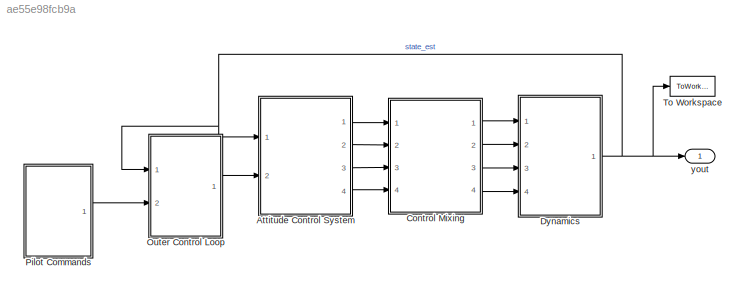
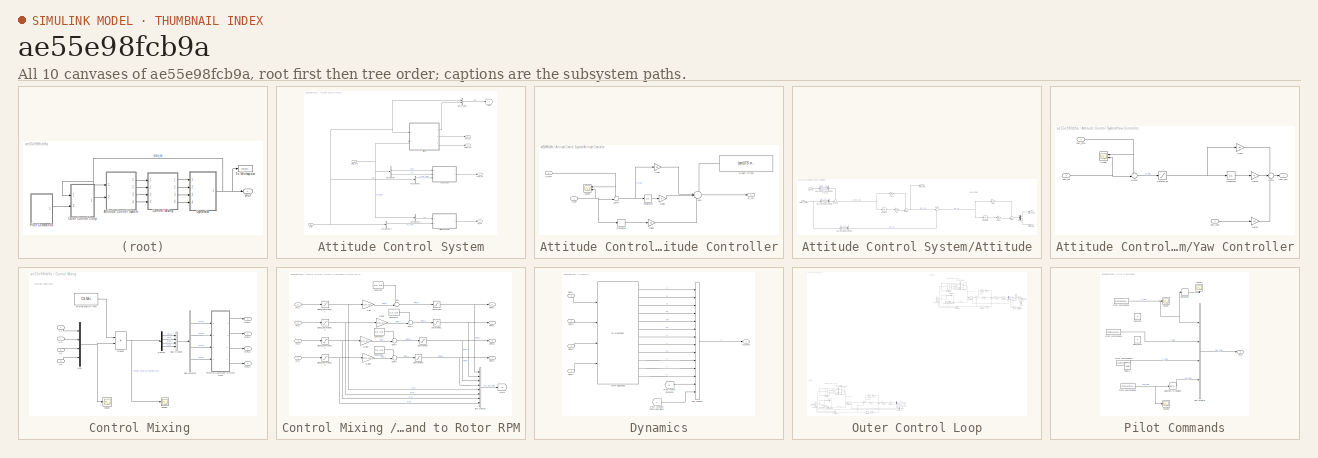
[diagram: thumbnail index - all 10 canvases of the model, root first then tree order]
MODEL slx_ae55e98fcb9a
KIND model
CONFIG AbsTol = auto
CONFIG EnableMultiTasking = off
CONFIG FixedStep = auto
CONFIG MaxStep = auto
CONFIG MinStep = auto
CONFIG RelTol = 1e-3
CONFIG SampleTimeConstraint = Unconstrained
CONFIG SolverName = VariableStepAuto
CONFIG StartTime = 0.0
CONFIG StopTime = 40
BLOCK [SubSystem] Attitude Control System
  Ports = [2, 4]
  RequestExecContextInheritance = off
BLOCK [Outport] Attitude Control System/Alt_cor
  Port = 4
BLOCK [SubSystem] Attitude Control System/Altitude Controller
  Ports = [2, 1]
  RequestExecContextInheritance = off
BLOCK [Outport] Attitude Control System/Altitude Controller/Alt_corr
BLOCK [Derivative] Attitude Control System/Altitude Controller/Derivative
BLOCK [Gain] Attitude Control System/Altitude Controller/Gain
  Gain = Kp
BLOCK [Gain] Attitude Control System/Altitude Controller/Gain1
  Gain = Ki
BLOCK [Gain] Attitude Control System/Altitude Controller/Gain2
  Gain = Kd
BLOCK [Constant] Attitude Control System/Altitude Controller/Gravity Offset
  NameLocation = top
  Value = (sqrt((CS.m*9.81)/(4*CS.b))-CS.Cb)/CS.Cr
  VectorParams1D = off
BLOCK [Integrator] Attitude Control System/Altitude Controller/Integrator
  LimitOutput = on
  LowerSaturationLimit = -1
  Ports = [1, 1]
  UpperSaturationLimit = 1
BLOCK [Scope] Attitude Control System/Altitude Controller/Scope
  Floating = off
  NameLocation = top
  NumInputPorts = 2
  Ports = [2]
  ScopeSpecificationString = Simulink.scopes.TimeScopeBlockCfg('CurrentConfiguration', extmgr.ConfigurationSet(extmgr.Configuration('Core','General UI',true),extmgr.Configuration('Core','Source UI',true),extmgr.Configuration('Sources','WiredSimulink',true,'DataLoggingVariableName','ScopeData1'),extmgr.Configuration('Visuals','Time Domain',true,'SerializedDisplays',{struct('MinYLimReal','-0.0000000000000000000000058','MaxYLimR...<+1565ch>
BLOCK [Sum] Attitude Control System/Altitude Controller/Sum
  Inputs = +++-
  Ports = [4, 1]
BLOCK [Sum] Attitude Control System/Altitude Controller/Sum6
  Inputs = +-|
  Ports = [2, 1]
BLOCK [Inport] Attitude Control System/Altitude Controller/h_est
BLOCK [Inport] Attitude Control System/Altitude Controller/z_cmd
  Port = 2
BLOCK [SubSystem] Attitude Control System/Attitude
  Ports = [2, 3]
  RequestExecContextInheritance = off
BLOCK [Inport] Attitude Control System/Attitude/Att_cmd
BLOCK [BusCreator] Attitude Control System/Attitude/Bus Creator
  DisplayOption = bar
  InheritFromInputs = on
  Inputs = 2
  Ports = [2, 1]
BLOCK [BusCreator] Attitude Control System/Attitude/Bus Creator1
  DisplayOption = bar
  InheritFromInputs = on
  Inputs = 2
  Ports = [2, 1]
BLOCK [BusCreator] Attitude Control System/Attitude/Bus Creator2
  DisplayOption = bar
  InheritFromInputs = on
  Inputs = 2
  Ports = [2, 1]
BLOCK [BusSelector] Attitude Control System/Attitude/Bus Selector
  OutputSignals = pitch_cmd,roll_cmd
  Ports = [1, 2]
BLOCK [BusSelector] Attitude Control System/Attitude/Bus Selector3
  OutputSignals = The,Phi
  Ports = [1, 2]
BLOCK [BusSelector] Attitude Control System/Attitude/Bus Selector4
  OutputSignals = Q,P
  Ports = [1, 2]
BLOCK [Demux] Attitude Control System/Attitude/Demux
  Outputs = 2
  Ports = [1, 2]
BLOCK [Gain] Attitude Control System/Attitude/Gainki
  Gain = Ki2
BLOCK [Integrator] Attitude Control System/Attitude/Integrator
  LimitOutput = on
  LowerSaturationLimit = -1
  Ports = [1, 1]
  UpperSaturationLimit = 1
BLOCK [Integrator] Attitude Control System/Attitude/Integrator1
  LimitOutput = on
  LowerSaturationLimit = -1
  Ports = [1, 1]
  UpperSaturationLimit = 1
BLOCK [Gain] Attitude Control System/Attitude/Kd1
  Gain = Kd
BLOCK [Gain] Attitude Control System/Attitude/Ki1
  Gain = Ki
BLOCK [Gain] Attitude Control System/Attitude/Kp1
  Gain = Kp
BLOCK [Sum] Attitude Control System/Attitude/Sum
  Inputs = ++|
  Ports = [2, 1]
BLOCK [Sum] Attitude Control System/Attitude/Sum1
  Inputs = ++|
  Ports = [2, 1]
BLOCK [Sum] Attitude Control System/Attitude/Sum19
  Inputs = +-|
  Ports = [2, 1]
BLOCK [Sum] Attitude Control System/Attitude/Sum2
  Inputs = |+-
  Ports = [2, 1]
BLOCK [Outport] Attitude Control System/Attitude/phi_corr
  Port = 2
  VectorParamsAs1DForOutWhenUnconnected = off
BLOCK [Outport] Attitude Control System/Attitude/pitch_corr
  Port = 3
  VectorParamsAs1DForOutWhenUnconnected = off
BLOCK [Outport] Attitude Control System/Attitude/rate_cmd
BLOCK [Inport] Attitude Control System/Attitude/states_estim
  Port = 2
BLOCK [BusCreator] Attitude Control System/Bus Creator1
  DisplayOption = bar
  InheritFromInputs = on
  Inputs = 2
  Ports = [2, 1]
BLOCK [BusSelector] Attitude Control System/Bus Selector
  OutputSignals = Psi,R
  Ports = [1, 2]
BLOCK [BusSelector] Attitude Control System/Bus Selector1
  OutputSignals = pos_cmd.yaw_cmd
  Ports = [1, 1]
BLOCK [BusSelector] Attitude Control System/Bus Selector2
  OutputSignals = pos_cmd.z_cmd
  Ports = [1, 1]
BLOCK [BusSelector] Attitude Control System/Bus Selector3
  OutputSignals = Z
  Ports = [1, 1]
BLOCK [Goto] Attitude Control System/Goto1
  TagVisibility = global
BLOCK [SubSystem] Attitude Control System/Yaw Controller
  Ports = [3, 1]
  RequestExecContextInheritance = off
BLOCK [Gain] Attitude Control System/Yaw Controller/Gain
  Gain = Kp
BLOCK [Gain] Attitude Control System/Yaw Controller/Gain1
  Gain = Ki
BLOCK [Gain] Attitude Control System/Yaw Controller/Gain2
  Gain = Kd
BLOCK [Integrator] Attitude Control System/Yaw Controller/Integrator
  LimitOutput = on
  LowerSaturationLimit = -1
  Ports = [1, 1]
  UpperSaturationLimit = 1
BLOCK [Saturate] Attitude Control System/Yaw Controller/Saturation
  LowerLimit = -pi
  UpperLimit = pi
BLOCK [Scope] Attitude Control System/Yaw Controller/Scope
  Floating = off
  NameLocation = top
  NumInputPorts = 2
  Ports = [2]
  ScopeSpecificationString = Simulink.scopes.TimeScopeBlockCfg('CurrentConfiguration', extmgr.ConfigurationSet(extmgr.Configuration('Core','General UI',true),extmgr.Configuration('Core','Source UI',true),extmgr.Configuration('Sources','WiredSimulink',true,'DataLoggingVariableName','ScopeData2'),extmgr.Configuration('Visuals','Time Domain',true,'SerializedDisplays',{struct('MinYLimReal','-0.00308','MaxYLimReal','0.00465','YLab...<+1405ch>
BLOCK [Sum] Attitude Control System/Yaw Controller/Sum1
  Inputs = ++-
  Ports = [3, 1]
BLOCK [Sum] Attitude Control System/Yaw Controller/Sum6
  Inputs = +-|
  Ports = [2, 1]
BLOCK [Inport] Attitude Control System/Yaw Controller/yaw_cmd
  Port = 3
BLOCK [Outport] Attitude Control System/Yaw Controller/yaw_corr
BLOCK [Inport] Attitude Control System/Yaw Controller/yaw_est
BLOCK [Inport] Attitude Control System/Yaw Controller/yaw_rate
  Port = 2
BLOCK [Inport] Attitude Control System/cmd
  Port = 2
BLOCK [Outport] Attitude Control System/phi_cor
BLOCK [Inport] Attitude Control System/state_est
BLOCK [Outport] Attitude Control System/theta_cor
  Port = 2
BLOCK [Outport] Attitude Control System/yaw_cor
  Port = 3
BLOCK [SubSystem] Control Mixing 
  Ports = [4, 4]
  RequestExecContextInheritance = off
BLOCK [BusCreator] Control Mixing /Bus Creator
  DisplayOption = bar
  InheritFromInputs = on
  Inputs = 4
  Ports = [4, 1]
BLOCK [BusSelector] Control Mixing /Bus Selector
  OutputSignals = mc1,mc2,mc3,mc4
  Ports = [1, 4]
BLOCK [Demux] Control Mixing /Demux
  Ports = [1, 4]
BLOCK [Constant] Control Mixing /Mixing Matrix (4x4)
  NameLocation = top
  OutDataTypeStr = single
  Value = CS.Mix
BLOCK [Mux] Control Mixing /Mux
  DisplayOption = bar
  Ports = [4, 1]
BLOCK [Product] Control Mixing /Product
  Multiplication = Matrix(*)
  Ports = [2, 1]
  RndMeth = Zero
BLOCK [Outport] Control Mixing /RPM1
BLOCK [Outport] Control Mixing /RPM2
  Port = 2
BLOCK [Outport] Control Mixing /RPM3
  Port = 3
BLOCK [Outport] Control Mixing /RPM4
  Port = 4
BLOCK [Scope] Control Mixing /Scope
  Floating = off
  NumInputPorts = 1
  Ports = [1]
  ScopeSpecificationString = Simulink.scopes.TimeScopeBlockCfg('CurrentConfiguration', extmgr.ConfigurationSet(extmgr.Configuration('Core','General UI',true),extmgr.Configuration('Core','Source UI',true),extmgr.Configuration('Sources','WiredSimulink',true,'DataLoggingVariableName','ScopeData1'),extmgr.Configuration('Visuals','Time Domain',true,'SerializedDisplays',{struct('MinYLimReal','-16.84881','MaxYLimReal','118.1171','YL...<+1409ch>
BLOCK [Scope] Control Mixing /Scope1
  Floating = off
  NumInputPorts = 1
  Ports = [1]
  ScopeSpecificationString = Simulink.scopes.TimeScopeBlockCfg('CurrentConfiguration', extmgr.ConfigurationSet(extmgr.Configuration('Core','General UI',true),extmgr.Configuration('Core','Source UI',true),extmgr.Configuration('Sources','WiredSimulink',true,'DataLoggingVariableName','ScopeData2'),extmgr.Configuration('Visuals','Time Domain',true,'SerializedDisplays',{struct('MinYLimReal','6.25322','MaxYLimReal','13.74213','YLab...<+1511ch>
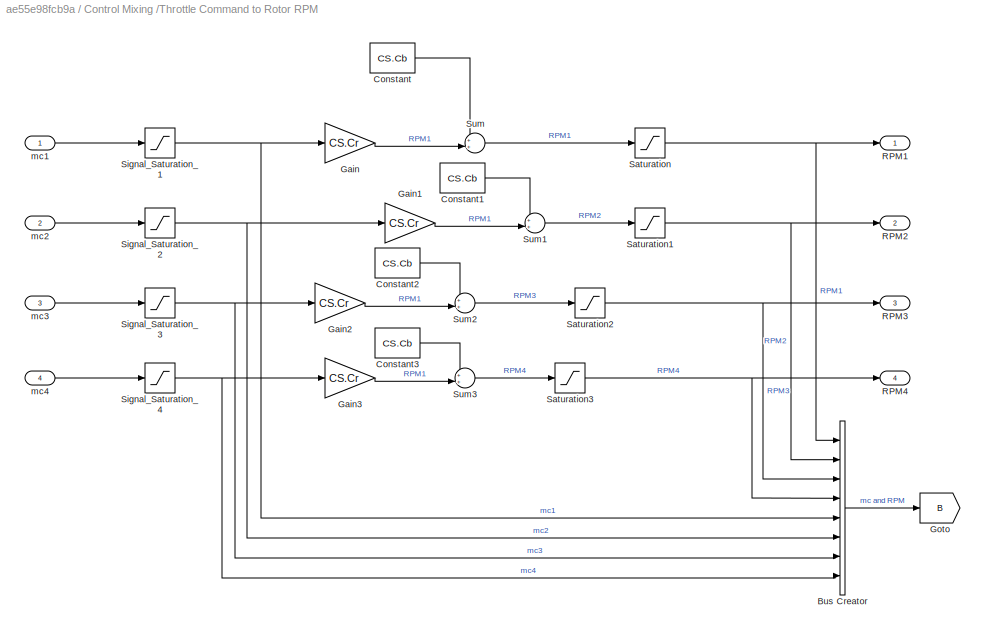
BLOCK [SubSystem] Control Mixing /Throttle Command to Rotor RPM
  Ports = [4, 4]
  RequestExecContextInheritance = off
BLOCK [BusCreator] Control Mixing /Throttle Command to Rotor RPM/Bus Creator
  DisplayOption = bar
  InheritFromInputs = on
  Inputs = 8
  Ports = [8, 1]
BLOCK [Constant] Control Mixing /Throttle Command to Rotor RPM/Constant
  Value = CS.Cb
BLOCK [Constant] Control Mixing /Throttle Command to Rotor RPM/Constant1
  Value = CS.Cb
BLOCK [Constant] Control Mixing /Throttle Command to Rotor RPM/Constant2
  Value = CS.Cb
BLOCK [Constant] Control Mixing /Throttle Command to Rotor RPM/Constant3
  Value = CS.Cb
BLOCK [Gain] Control Mixing /Throttle Command to Rotor RPM/Gain
  Gain = CS.Cr
BLOCK [Gain] Control Mixing /Throttle Command to Rotor RPM/Gain1
  Gain = CS.Cr
BLOCK [Gain] Control Mixing /Throttle Command to Rotor RPM/Gain2
  Gain = CS.Cr
BLOCK [Gain] Control Mixing /Throttle Command to Rotor RPM/Gain3
  Gain = CS.Cr
BLOCK [Goto] Control Mixing /Throttle Command to Rotor RPM/Goto
  GotoTag = B
  TagVisibility = global
BLOCK [Outport] Control Mixing /Throttle Command to Rotor RPM/RPM1
BLOCK [Outport] Control Mixing /Throttle Command to Rotor RPM/RPM2
  Port = 2
BLOCK [Outport] Control Mixing /Throttle Command to Rotor RPM/RPM3
  Port = 3
BLOCK [Outport] Control Mixing /Throttle Command to Rotor RPM/RPM4
  Port = 4
BLOCK [Saturate] Control Mixing /Throttle Command to Rotor RPM/Saturation
  LowerLimit = CS.Cb
  UpperLimit = 10e3
BLOCK [Saturate] Control Mixing /Throttle Command to Rotor RPM/Saturation1
  LowerLimit = CS.Cb
  UpperLimit = 10e3
BLOCK [Saturate] Control Mixing /Throttle Command to Rotor RPM/Saturation2
  LowerLimit = CS.Cb
  UpperLimit = 10e3
BLOCK [Saturate] Control Mixing /Throttle Command to Rotor RPM/Saturation3
  LowerLimit = CS.Cb
  UpperLimit = 10e3
BLOCK [Saturate] Control Mixing /Throttle Command to Rotor RPM/Signal_Saturation_1
  LowerLimit = 0
  UpperLimit = 100
BLOCK [Saturate] Control Mixing /Throttle Command to Rotor RPM/Signal_Saturation_2
  LowerLimit = 0
  UpperLimit = 100
BLOCK [Saturate] Control Mixing /Throttle Command to Rotor RPM/Signal_Saturation_3
  LowerLimit = 0
  UpperLimit = 100
BLOCK [Saturate] Control Mixing /Throttle Command to Rotor RPM/Signal_Saturation_4
  LowerLimit = 0
  UpperLimit = 100
BLOCK [Sum] Control Mixing /Throttle Command to Rotor RPM/Sum
  Inputs = ++|
  Ports = [2, 1]
BLOCK [Sum] Control Mixing /Throttle Command to Rotor RPM/Sum1
  Inputs = ++|
  Ports = [2, 1]
BLOCK [Sum] Control Mixing /Throttle Command to Rotor RPM/Sum2
  Inputs = ++|
  Ports = [2, 1]
BLOCK [Sum] Control Mixing /Throttle Command to Rotor RPM/Sum3
  Inputs = ++|
  Ports = [2, 1]
BLOCK [Inport] Control Mixing /Throttle Command to Rotor RPM/mc1
BLOCK [Inport] Control Mixing /Throttle Command to Rotor RPM/mc2
  Port = 2
BLOCK [Inport] Control Mixing /Throttle Command to Rotor RPM/mc3
  Port = 3
BLOCK [Inport] Control Mixing /Throttle Command to Rotor RPM/mc4
  Port = 4
BLOCK [Inport] Control Mixing /U1
  Port = 4
BLOCK [Inport] Control Mixing /U2
BLOCK [Inport] Control Mixing /U3
  Port = 2
BLOCK [Inport] Control Mixing /U4
  Port = 3
BLOCK [SubSystem] Dynamics
  Ports = [4, 1]
  RequestExecContextInheritance = off
BLOCK [BusCreator] Dynamics/Bus Creator
  DisplayOption = bar
  InheritFromInputs = on
  Inputs = 14
  Ports = [14, 1]
BLOCK [From] Dynamics/From Attitude Command Block
  TagVisibility = global
BLOCK [From] Dynamics/From Motor Dynamics
  GotoTag = B
  TagVisibility = global
BLOCK [Outport] Dynamics/Outputs
BLOCK [Inport] Dynamics/RPM1
BLOCK [Inport] Dynamics/RPM2
  Port = 2
BLOCK [Inport] Dynamics/RPM3
  Port = 3
BLOCK [Inport] Dynamics/RPM4
  Port = 4
BLOCK [M-S-Function] Dynamics/State Equations
  FunctionName = Quad_dynamics
  Parameters = CS
  Ports = [4, 12]
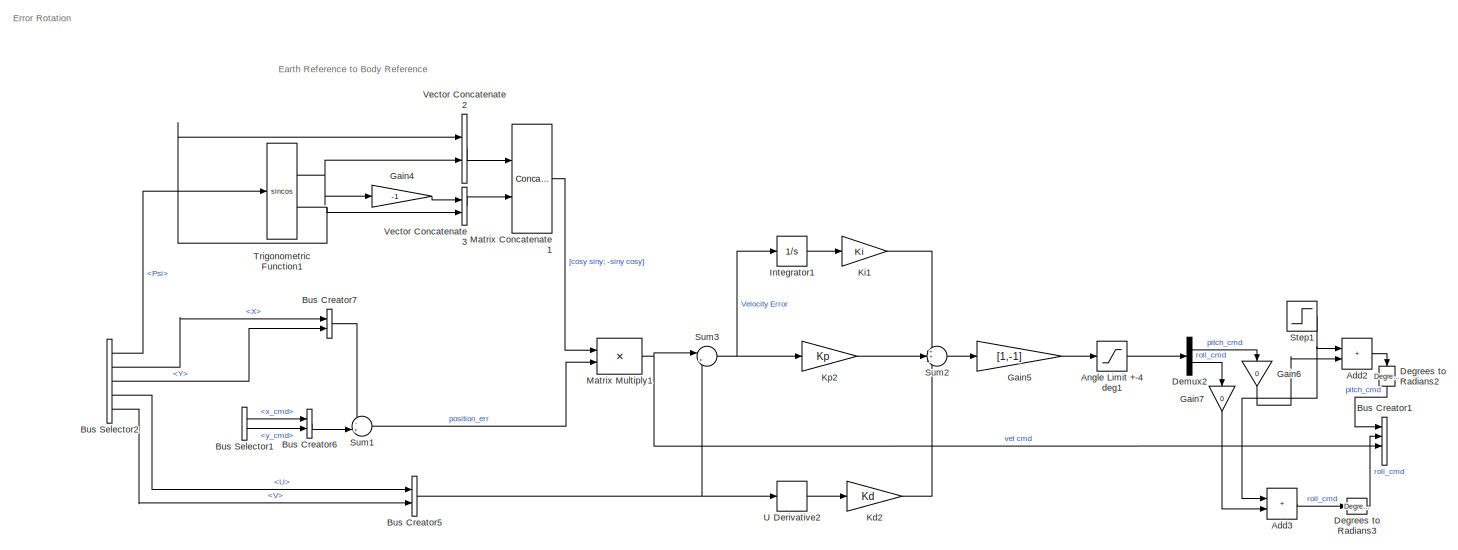
[diagram: Outer Control Loop - part 1/2, top right region]
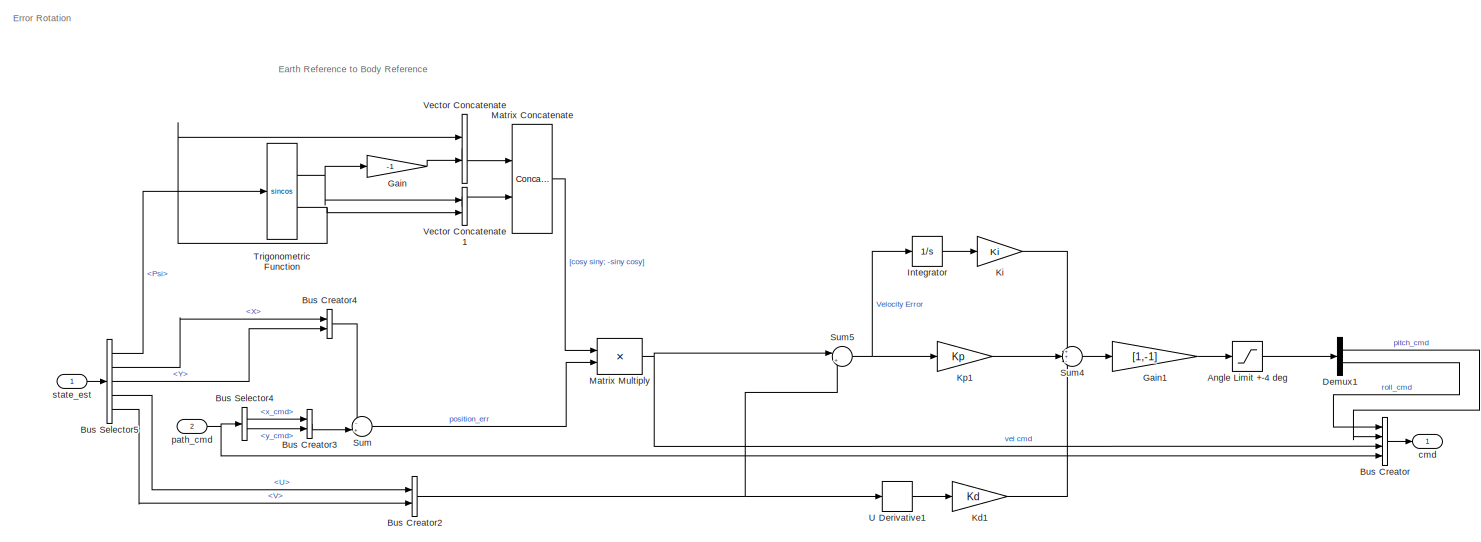
[diagram: Outer Control Loop - part 2/2, bottom left region]
BLOCK [SubSystem] Outer Control Loop
  Ports = [2, 1]
  RequestExecContextInheritance = off
BLOCK [Sum] Outer Control Loop/Add2
  Commented = on
  IconShape = rectangular
  Ports = [2, 1]
BLOCK [Sum] Outer Control Loop/Add3
  Commented = on
  IconShape = rectangular
  Ports = [2, 1]
BLOCK [Saturate] Outer Control Loop/Angle Limit +-4 deg
  LowerLimit = -4*pi/180
  UpperLimit = 4*pi/180
BLOCK [Saturate] Outer Control Loop/Angle Limit +-4 deg1
  Commented = on
  LowerLimit = -4*pi/180
  UpperLimit = 4*pi/180
BLOCK [BusCreator] Outer Control Loop/Bus Creator
  DisplayOption = bar
  InheritFromInputs = on
  Inputs = 4
  Ports = [4, 1]
BLOCK [BusCreator] Outer Control Loop/Bus Creator1
  Commented = on
  DisplayOption = bar
  InheritFromInputs = on
  Inputs = 4
  Ports = [4, 1]
BLOCK [BusCreator] Outer Control Loop/Bus Creator2
  DisplayOption = bar
  InheritFromInputs = on
  Inputs = 2
  Ports = [2, 1]
BLOCK [BusCreator] Outer Control Loop/Bus Creator3
  DisplayOption = bar
  InheritFromInputs = on
  Inputs = 2
  Ports = [2, 1]
BLOCK [BusCreator] Outer Control Loop/Bus Creator4
  DisplayOption = bar
  InheritFromInputs = on
  Inputs = 2
  Ports = [2, 1]
BLOCK [BusCreator] Outer Control Loop/Bus Creator5
  Commented = on
  DisplayOption = bar
  InheritFromInputs = on
  Inputs = 2
  Ports = [2, 1]
BLOCK [BusCreator] Outer Control Loop/Bus Creator6
  Commented = on
  DisplayOption = bar
  InheritFromInputs = on
  Inputs = 2
  Ports = [2, 1]
BLOCK [BusCreator] Outer Control Loop/Bus Creator7
  Commented = on
  DisplayOption = bar
  InheritFromInputs = on
  Inputs = 2
  Ports = [2, 1]
BLOCK [BusSelector] Outer Control Loop/Bus Selector1
  Commented = on
  OutputSignals = x_cmd,y_cmd
  Ports = [1, 2]
BLOCK [BusSelector] Outer Control Loop/Bus Selector2
  Commented = on
  OutputSignals = Psi,X,Y,U,V
  Ports = [1, 5]
BLOCK [BusSelector] Outer Control Loop/Bus Selector4
  OutputSignals = x_cmd,y_cmd
  Ports = [1, 2]
BLOCK [BusSelector] Outer Control Loop/Bus Selector5
  OutputSignals = Psi,X,Y,U,V
  Ports = [1, 5]
BLOCK [Reference] Outer Control Loop/Degrees to Radians2  REF=simulink_extras/Transformations/Degrees to
Radians
  Commented = on
  NameLocation = left
  Ports = [1, 1]
  SourceBlock = simulink_extras/Transformations/Degrees to\nRadians
  SourceProductBaseCode = SL
  SourceType = DegreesToRadians
BLOCK [Reference] Outer Control Loop/Degrees to Radians3  REF=simulink_extras/Transformations/Degrees to
Radians
  Commented = on
  Ports = [1, 1]
  SourceBlock = simulink_extras/Transformations/Degrees to\nRadians
  SourceProductBaseCode = SL
  SourceType = DegreesToRadians
BLOCK [Demux] Outer Control Loop/Demux1
  Outputs = 2
  Ports = [1, 2]
BLOCK [Demux] Outer Control Loop/Demux2
  Commented = on
  Outputs = 2
  Ports = [1, 2]
BLOCK [Gain] Outer Control Loop/Gain
  Gain = -1
BLOCK [Gain] Outer Control Loop/Gain1
  Gain = [1,-1]
BLOCK [Gain] Outer Control Loop/Gain4
  Commented = on
  Gain = -1
BLOCK [Gain] Outer Control Loop/Gain5
  Commented = on
  Gain = [1,-1]
BLOCK [Gain] Outer Control Loop/Gain6
  Commented = on
  Gain = 0
  NameLocation = left
BLOCK [Gain] Outer Control Loop/Gain7
  Commented = on
  Gain = 0
  NameLocation = left
BLOCK [Integrator] Outer Control Loop/Integrator
  LimitOutput = on
  LowerSaturationLimit = -1
  Ports = [1, 1]
  UpperSaturationLimit = 1
BLOCK [Integrator] Outer Control Loop/Integrator1
  Commented = on
  LimitOutput = on
  LowerSaturationLimit = -1
  Ports = [1, 1]
  UpperSaturationLimit = 1
BLOCK [Gain] Outer Control Loop/Kd1
  Gain = Kd
BLOCK [Gain] Outer Control Loop/Kd2
  Commented = on
  Gain = Kd
BLOCK [Gain] Outer Control Loop/Ki
  Gain = Ki
BLOCK [Gain] Outer Control Loop/Ki1
  Commented = on
  Gain = Ki
BLOCK [Gain] Outer Control Loop/Kp1
  Gain = Kp
BLOCK [Gain] Outer Control Loop/Kp2
  Commented = on
  Gain = Kp
BLOCK [Concatenate] Outer Control Loop/Matrix Concatenate
  ConcatenateDimension = 2
  Mode = Multidimensional array
  Ports = [2, 1]
BLOCK [Concatenate] Outer Control Loop/Matrix Concatenate1
  Commented = on
  ConcatenateDimension = 2
  Mode = Multidimensional array
  Ports = [2, 1]
BLOCK [Product] Outer Control Loop/Matrix Multiply
  Multiplication = Matrix(*)
  Ports = [2, 1]
BLOCK [Product] Outer Control Loop/Matrix Multiply1
  Commented = on
  Multiplication = Matrix(*)
  Ports = [2, 1]
BLOCK [Step] Outer Control Loop/Step1
  Commented = on
  SampleTime = 0
BLOCK [Sum] Outer Control Loop/Sum
  Inputs = -+|
  Ports = [2, 1]
BLOCK [Sum] Outer Control Loop/Sum1
  Commented = on
  Inputs = -+|
  Ports = [2, 1]
BLOCK [Sum] Outer Control Loop/Sum2
  Commented = on
  Inputs = ++-
  Ports = [3, 1]
BLOCK [Sum] Outer Control Loop/Sum3
  Commented = on
  Inputs = |+-
  Ports = [2, 1]
BLOCK [Sum] Outer Control Loop/Sum4
  Inputs = ++-
  Ports = [3, 1]
BLOCK [Sum] Outer Control Loop/Sum5
  Inputs = |+-
  Ports = [2, 1]
BLOCK [Trigonometry] Outer Control Loop/Trigonometric Function
  Operator = sincos
  Ports = [1, 2]
BLOCK [Trigonometry] Outer Control Loop/Trigonometric Function1
  Commented = on
  Operator = sincos
  Ports = [1, 2]
BLOCK [Derivative] Outer Control Loop/U Derivative1
BLOCK [Derivative] Outer Control Loop/U Derivative2
  Commented = on
BLOCK [Concatenate] Outer Control Loop/Vector Concatenate
  Ports = [2, 1]
BLOCK [Concatenate] Outer Control Loop/Vector Concatenate1
  Ports = [2, 1]
BLOCK [Concatenate] Outer Control Loop/Vector Concatenate2
  Commented = on
  Ports = [2, 1]
BLOCK [Concatenate] Outer Control Loop/Vector Concatenate3
  Commented = on
  Ports = [2, 1]
BLOCK [Outport] Outer Control Loop/cmd
BLOCK [Inport] Outer Control Loop/path_cmd
  Port = 2
BLOCK [Inport] Outer Control Loop/state_est
  NameLocation = top
BLOCK [SubSystem] Pilot Commands
  Ports = [0, 1]
  RequestExecContextInheritance = off
BLOCK [BusCreator] Pilot Commands/Bus Creator
  DisplayOption = bar
  InheritFromInputs = on
  Inputs = 4
  Ports = [4, 1]
BLOCK [Outport] Pilot Commands/Cmd
BLOCK [Constant] Pilot Commands/Constant
  Value = 0
BLOCK [Constant] Pilot Commands/Constant1
  Value = 0
BLOCK [Reference] Pilot Commands/Degrees to Radians  REF=simulink_extras/Transformations/Degrees to
Radians
  Ports = [1, 1]
  SourceBlock = simulink_extras/Transformations/Degrees to\nRadians
  SourceProductBaseCode = SL
  SourceType = DegreesToRadians
BLOCK [Derivative] Pilot Commands/Derivative
BLOCK [FromWorkspace] Pilot Commands/From Workspace
  VariableName = path.x
BLOCK [FromWorkspace] Pilot Commands/From Workspace1
  VariableName = path.y
BLOCK [FromWorkspace] Pilot Commands/From Workspace2
  VariableName = path.z
BLOCK [FromWorkspace] Pilot Commands/From Workspace3
  VariableName = path.psi
BLOCK [Reference] Pilot Commands/Ramp  REF=simulink/Sources/Ramp
  Ports = [0, 1]
  SourceBlock = simulink/Sources/Ramp
  SourceProductBaseCode = SL
  SourceType = Ramp
BLOCK [Scope] Pilot Commands/Scope
  Floating = off
  NumInputPorts = 1
  Ports = [1]
  ScopeSpecificationString = Simulink.scopes.TimeScopeBlockCfg('CurrentConfiguration', extmgr.ConfigurationSet(extmgr.Configuration('Core','General UI',true),extmgr.Configuration('Core','Source UI',true),extmgr.Configuration('Sources','WiredSimulink',true,'DataLoggingVariableName','ScopeData1'),extmgr.Configuration('Visuals','Time Domain',true,'SerializedDisplays',{struct('MinYLimReal','-1.875','MaxYLimReal','16.875','YLabelR...<+1391ch>
BLOCK [Scope] Pilot Commands/Scope1
  Floating = off
  NameLocation = right
  NumInputPorts = 1
  Ports = [1]
  ScopeSpecificationString = Simulink.scopes.TimeScopeBlockCfg('CurrentConfiguration', extmgr.ConfigurationSet(extmgr.Configuration('Core','General UI',true),extmgr.Configuration('Core','Source UI',true),extmgr.Configuration('Sources','WiredSimulink',true,'DataLoggingVariableName','ScopeData2'),extmgr.Configuration('Visuals','Time Domain',true,'SerializedDisplays',{struct('MinYLimReal','-1.00000','MaxYLimReal','1.00000','YLab...<+1369ch>
BLOCK [Scope] Pilot Commands/Scope2
  Floating = off
  NumInputPorts = 1
  Ports = [1]
  ScopeSpecificationString = Simulink.scopes.TimeScopeBlockCfg('CurrentConfiguration', extmgr.ConfigurationSet(extmgr.Configuration('Core','General UI',true),extmgr.Configuration('Core','Source UI',true),extmgr.Configuration('Sources','WiredSimulink',true,'DataLoggingVariableName','ScopeData1'),extmgr.Configuration('Visuals','Time Domain',true),extmgr.Configuration('Tools','Plot Navigation',true),extmgr.Configuration('Tools',...<+40ch>
BLOCK [ToWorkspace] To Workspace
  FixptAsFi = on
  MaxDataPoints = inf
  Ports = [1]
  SampleTime = -1
  Save2DSignal = 2-D array (concatenate along first dimension)
  SaveFormat = Timeseries
  VariableName = states
BLOCK [Outport] yout
ANNOTATION Attitude Control System/Attitude: ATTITUDE
ANNOTATION Attitude Control System/Attitude: Rate Controller
ANNOTATION Control Mixing : Mixing Algorithm
ANNOTATION Outer Control Loop: Earth Reference to Body Reference
ANNOTATION Outer Control Loop: Error Rotation
LINE Attitude Control System/Altitude Controller/Derivative:1 -> Attitude Control System/Altitude Controller/Gain2:1
LINE Attitude Control System/Altitude Controller/Gain1:1 -> Attitude Control System/Altitude Controller/Sum:3
LINE Attitude Control System/Altitude Controller/Gain2:1 -> Attitude Control System/Altitude Controller/Sum:4
LINE Attitude Control System/Altitude Controller/Gain:1 -> Attitude Control System/Altitude Controller/Sum:2
LINE Attitude Control System/Altitude Controller/Gravity Offset:1 -> Attitude Control System/Altitude Controller/Sum:1
LINE Attitude Control System/Altitude Controller/Integrator:1 -> Attitude Control System/Altitude Controller/Gain1:1
NET Attitude Control System/Altitude Controller/Sum6:1 -> Attitude Control System/Altitude Controller/Gain:1, Attitude Control System/Altitude Controller/Integrator:1
LINE Attitude Control System/Altitude Controller/Sum:1 -> Attitude Control System/Altitude Controller/Alt_corr:1
NET Attitude Control System/Altitude Controller/h_est:1 -> Attitude Control System/Altitude Controller/Derivative:1, Attitude Control System/Altitude Controller/Scope:2, Attitude Control System/Altitude Controller/Sum6:2
NET Attitude Control System/Altitude Controller/z_cmd:1 -> Attitude Control System/Altitude Controller/Scope:1, Attitude Control System/Altitude Controller/Sum6:1
LINE Attitude Control System/Altitude Controller:1 -> Attitude Control System/Alt_cor:1
LINE Attitude Control System/Attitude/Att_cmd:1 -> Attitude Control System/Attitude/Bus Selector:1
LINE Attitude Control System/Attitude/Bus Creator1:1 -> Attitude Control System/Attitude/Sum19:1
LINE Attitude Control System/Attitude/Bus Creator2:1 -> Attitude Control System/Attitude/Sum2:2
LINE Attitude Control System/Attitude/Bus Creator:1 -> Attitude Control System/Attitude/Sum19:2
LINE Attitude Control System/Attitude/Bus Selector3:1 -> Attitude Control System/Attitude/Bus Creator:1
LINE Attitude Control System/Attitude/Bus Selector3:2 -> Attitude Control System/Attitude/Bus Creator:2
LINE Attitude Control System/Attitude/Bus Selector4:1 -> Attitude Control System/Attitude/Bus Creator2:1
LINE Attitude Control System/Attitude/Bus Selector4:2 -> Attitude Control System/Attitude/Bus Creator2:2
LINE Attitude Control System/Attitude/Bus Selector:1 -> Attitude Control System/Attitude/Bus Creator1:1
LINE Attitude Control System/Attitude/Bus Selector:2 -> Attitude Control System/Attitude/Bus Creator1:2
LINE Attitude Control System/Attitude/Demux:1 -> Attitude Control System/Attitude/pitch_corr:1
LINE Attitude Control System/Attitude/Demux:2 -> Attitude Control System/Attitude/phi_corr:1
LINE Attitude Control System/Attitude/Gainki:1 -> Attitude Control System/Attitude/Sum:2
LINE Attitude Control System/Attitude/Integrator1:1 -> Attitude Control System/Attitude/Gainki:1
LINE Attitude Control System/Attitude/Integrator:1 -> Attitude Control System/Attitude/Ki1:1
LINE Attitude Control System/Attitude/Kd1:1 -> Attitude Control System/Attitude/Sum:1
LINE Attitude Control System/Attitude/Ki1:1 -> Attitude Control System/Attitude/Sum1:2
LINE Attitude Control System/Attitude/Kp1:1 -> Attitude Control System/Attitude/Sum1:1
NET Attitude Control System/Attitude/Sum19:1 -> Attitude Control System/Attitude/Integrator:1, Attitude Control System/Attitude/Kp1:1
NET Attitude Control System/Attitude/Sum1:1 -> Attitude Control System/Attitude/Sum2:1, Attitude Control System/Attitude/rate_cmd:1
NET Attitude Control System/Attitude/Sum2:1 -> Attitude Control System/Attitude/Integrator1:1, Attitude Control System/Attitude/Kd1:1
LINE Attitude Control System/Attitude/Sum:1 -> Attitude Control System/Attitude/Demux:1
NET Attitude Control System/Attitude/states_estim:1 -> Attitude Control System/Attitude/Bus Selector3:1, Attitude Control System/Attitude/Bus Selector4:1
LINE Attitude Control System/Attitude:1 -> Attitude Control System/Bus Creator1:2
LINE Attitude Control System/Attitude:2 -> Attitude Control System/phi_cor:1
LINE Attitude Control System/Attitude:3 -> Attitude Control System/theta_cor:1
LINE Attitude Control System/Bus Creator1:1 -> Attitude Control System/Goto1:1
LINE Attitude Control System/Bus Selector1:1 -> Attitude Control System/Yaw Controller:3
LINE Attitude Control System/Bus Selector2:1 -> Attitude Control System/Altitude Controller:2
LINE Attitude Control System/Bus Selector3:1 -> Attitude Control System/Altitude Controller:1
LINE Attitude Control System/Bus Selector:1 -> Attitude Control System/Yaw Controller:1
LINE Attitude Control System/Bus Selector:2 -> Attitude Control System/Yaw Controller:2
LINE Attitude Control System/Yaw Controller/Gain1:1 -> Attitude Control System/Yaw Controller/Sum1:2
LINE Attitude Control System/Yaw Controller/Gain2:1 -> Attitude Control System/Yaw Controller/Sum1:3
LINE Attitude Control System/Yaw Controller/Gain:1 -> Attitude Control System/Yaw Controller/Sum1:1
LINE Attitude Control System/Yaw Controller/Integrator:1 -> Attitude Control System/Yaw Controller/Gain1:1
NET Attitude Control System/Yaw Controller/Saturation:1 -> Attitude Control System/Yaw Controller/Gain:1, Attitude Control System/Yaw Controller/Integrator:1
LINE Attitude Control System/Yaw Controller/Sum1:1 -> Attitude Control System/Yaw Controller/yaw_corr:1
LINE Attitude Control System/Yaw Controller/Sum6:1 -> Attitude Control System/Yaw Controller/Saturation:1
NET Attitude Control System/Yaw Controller/yaw_cmd:1 -> Attitude Control System/Yaw Controller/Scope:1, Attitude Control System/Yaw Controller/Sum6:1
NET Attitude Control System/Yaw Controller/yaw_est:1 -> Attitude Control System/Yaw Controller/Scope:2, Attitude Control System/Yaw Controller/Sum6:2
LINE Attitude Control System/Yaw Controller/yaw_rate:1 -> Attitude Control System/Yaw Controller/Gain2:1
LINE Attitude Control System/Yaw Controller:1 -> Attitude Control System/yaw_cor:1
NET Attitude Control System/cmd:1 -> Attitude Control System/Attitude:1, Attitude Control System/Bus Creator1:1, Attitude Control System/Bus Selector1:1, Attitude Control System/Bus Selector2:1
NET Attitude Control System/state_est:1 -> Attitude Control System/Attitude:2, Attitude Control System/Bus Selector3:1, Attitude Control System/Bus Selector:1
LINE Attitude Control System:1 -> Control Mixing :1
LINE Attitude Control System:2 -> Control Mixing :2
LINE Attitude Control System:3 -> Control Mixing :3
LINE Attitude Control System:4 -> Control Mixing :4
LINE Control Mixing /Bus Creator:1 -> Control Mixing /Bus Selector:1
LINE Control Mixing /Bus Selector:1 -> Control Mixing /Throttle Command to Rotor RPM:1
LINE Control Mixing /Bus Selector:2 -> Control Mixing /Throttle Command to Rotor RPM:2
LINE Control Mixing /Bus Selector:3 -> Control Mixing /Throttle Command to Rotor RPM:3
LINE Control Mixing /Bus Selector:4 -> Control Mixing /Throttle Command to Rotor RPM:4
LINE Control Mixing /Demux:1 -> Control Mixing /Bus Creator:1
LINE Control Mixing /Demux:2 -> Control Mixing /Bus Creator:2
LINE Control Mixing /Demux:3 -> Control Mixing /Bus Creator:3
LINE Control Mixing /Demux:4 -> Control Mixing /Bus Creator:4
LINE Control Mixing /Mixing Matrix (4x4):1 -> Control Mixing /Product:1
NET Control Mixing /Mux:1 -> Control Mixing /Product:2, Control Mixing /Scope:1
NET Control Mixing /Product:1 -> Control Mixing /Demux:1, Control Mixing /Scope1:1
LINE Control Mixing /Throttle Command to Rotor RPM/Bus Creator:1 -> Control Mixing /Throttle Command to Rotor RPM/Goto:1
LINE Control Mixing /Throttle Command to Rotor RPM/Constant1:1 -> Control Mixing /Throttle Command to Rotor RPM/Sum1:1
LINE Control Mixing /Throttle Command to Rotor RPM/Constant2:1 -> Control Mixing /Throttle Command to Rotor RPM/Sum2:1
LINE Control Mixing /Throttle Command to Rotor RPM/Constant3:1 -> Control Mixing /Throttle Command to Rotor RPM/Sum3:1
LINE Control Mixing /Throttle Command to Rotor RPM/Constant:1 -> Control Mixing /Throttle Command to Rotor RPM/Sum:1
LINE Control Mixing /Throttle Command to Rotor RPM/Gain1:1 -> Control Mixing /Throttle Command to Rotor RPM/Sum1:2
LINE Control Mixing /Throttle Command to Rotor RPM/Gain2:1 -> Control Mixing /Throttle Command to Rotor RPM/Sum2:2
LINE Control Mixing /Throttle Command to Rotor RPM/Gain3:1 -> Control Mixing /Throttle Command to Rotor RPM/Sum3:2
LINE Control Mixing /Throttle Command to Rotor RPM/Gain:1 -> Control Mixing /Throttle Command to Rotor RPM/Sum:2
NET Control Mixing /Throttle Command to Rotor RPM/Saturation1:1 -> Control Mixing /Throttle Command to Rotor RPM/Bus Creator:2, Control Mixing /Throttle Command to Rotor RPM/RPM2:1
NET Control Mixing /Throttle Command to Rotor RPM/Saturation2:1 -> Control Mixing /Throttle Command to Rotor RPM/Bus Creator:3, Control Mixing /Throttle Command to Rotor RPM/RPM3:1
NET Control Mixing /Throttle Command to Rotor RPM/Saturation3:1 -> Control Mixing /Throttle Command to Rotor RPM/Bus Creator:4, Control Mixing /Throttle Command to Rotor RPM/RPM4:1
NET Control Mixing /Throttle Command to Rotor RPM/Saturation:1 -> Control Mixing /Throttle Command to Rotor RPM/Bus Creator:1, Control Mixing /Throttle Command to Rotor RPM/RPM1:1
NET Control Mixing /Throttle Command to Rotor RPM/Signal_Saturation_1:1 -> Control Mixing /Throttle Command to Rotor RPM/Bus Creator:5, Control Mixing /Throttle Command to Rotor RPM/Gain:1
NET Control Mixing /Throttle Command to Rotor RPM/Signal_Saturation_2:1 -> Control Mixing /Throttle Command to Rotor RPM/Bus Creator:6, Control Mixing /Throttle Command to Rotor RPM/Gain1:1
NET Control Mixing /Throttle Command to Rotor RPM/Signal_Saturation_3:1 -> Control Mixing /Throttle Command to Rotor RPM/Bus Creator:7, Control Mixing /Throttle Command to Rotor RPM/Gain2:1
NET Control Mixing /Throttle Command to Rotor RPM/Signal_Saturation_4:1 -> Control Mixing /Throttle Command to Rotor RPM/Bus Creator:8, Control Mixing /Throttle Command to Rotor RPM/Gain3:1
LINE Control Mixing /Throttle Command to Rotor RPM/Sum1:1 -> Control Mixing /Throttle Command to Rotor RPM/Saturation1:1
LINE Control Mixing /Throttle Command to Rotor RPM/Sum2:1 -> Control Mixing /Throttle Command to Rotor RPM/Saturation2:1
LINE Control Mixing /Throttle Command to Rotor RPM/Sum3:1 -> Control Mixing /Throttle Command to Rotor RPM/Saturation3:1
LINE Control Mixing /Throttle Command to Rotor RPM/Sum:1 -> Control Mixing /Throttle Command to Rotor RPM/Saturation:1
LINE Control Mixing /Throttle Command to Rotor RPM/mc1:1 -> Control Mixing /Throttle Command to Rotor RPM/Signal_Saturation_1:1
LINE Control Mixing /Throttle Command to Rotor RPM/mc2:1 -> Control Mixing /Throttle Command to Rotor RPM/Signal_Saturation_2:1
LINE Control Mixing /Throttle Command to Rotor RPM/mc3:1 -> Control Mixing /Throttle Command to Rotor RPM/Signal_Saturation_3:1
LINE Control Mixing /Throttle Command to Rotor RPM/mc4:1 -> Control Mixing /Throttle Command to Rotor RPM/Signal_Saturation_4:1
LINE Control Mixing /Throttle Command to Rotor RPM:1 -> Control Mixing /RPM1:1
LINE Control Mixing /Throttle Command to Rotor RPM:2 -> Control Mixing /RPM2:1
LINE Control Mixing /Throttle Command to Rotor RPM:3 -> Control Mixing /RPM3:1
LINE Control Mixing /Throttle Command to Rotor RPM:4 -> Control Mixing /RPM4:1
LINE Control Mixing /U1:1 -> Control Mixing /Mux:1
LINE Control Mixing /U2:1 -> Control Mixing /Mux:2
LINE Control Mixing /U3:1 -> Control Mixing /Mux:3
LINE Control Mixing /U4:1 -> Control Mixing /Mux:4
LINE Control Mixing :1 -> Dynamics:1
LINE Control Mixing :2 -> Dynamics:2
LINE Control Mixing :3 -> Dynamics:3
LINE Control Mixing :4 -> Dynamics:4
LINE Dynamics/Bus Creator:1 -> Dynamics/Outputs:1
LINE Dynamics/From Attitude Command Block:1 -> Dynamics/Bus Creator:14
LINE Dynamics/From Motor Dynamics:1 -> Dynamics/Bus Creator:13
LINE Dynamics/RPM1:1 -> Dynamics/State Equations:1
LINE Dynamics/RPM2:1 -> Dynamics/State Equations:2
LINE Dynamics/RPM3:1 -> Dynamics/State Equations:3
LINE Dynamics/RPM4:1 -> Dynamics/State Equations:4
LINE Dynamics/State Equations:1 -> Dynamics/Bus Creator:1
LINE Dynamics/State Equations:10 -> Dynamics/Bus Creator:10
LINE Dynamics/State Equations:11 -> Dynamics/Bus Creator:11
LINE Dynamics/State Equations:12 -> Dynamics/Bus Creator:12
LINE Dynamics/State Equations:2 -> Dynamics/Bus Creator:2
LINE Dynamics/State Equations:3 -> Dynamics/Bus Creator:3
LINE Dynamics/State Equations:4 -> Dynamics/Bus Creator:4
LINE Dynamics/State Equations:5 -> Dynamics/Bus Creator:5
LINE Dynamics/State Equations:6 -> Dynamics/Bus Creator:6
LINE Dynamics/State Equations:7 -> Dynamics/Bus Creator:7
LINE Dynamics/State Equations:8 -> Dynamics/Bus Creator:8
LINE Dynamics/State Equations:9 -> Dynamics/Bus Creator:9
NET Dynamics:1 -> Attitude Control System:1, Outer Control Loop:1, To Workspace:1, yout:1
LINE Outer Control Loop/Add2:1 -> Outer Control Loop/Degrees to Radians2:1
LINE Outer Control Loop/Add3:1 -> Outer Control Loop/Degrees to Radians3:1
LINE Outer Control Loop/Angle Limit +-4 deg1:1 -> Outer Control Loop/Demux2:1
LINE Outer Control Loop/Angle Limit +-4 deg:1 -> Outer Control Loop/Demux1:1
NET Outer Control Loop/Bus Creator2:1 -> Outer Control Loop/Sum5:2, Outer Control Loop/U Derivative1:1
LINE Outer Control Loop/Bus Creator3:1 -> Outer Control Loop/Sum:2
LINE Outer Control Loop/Bus Creator4:1 -> Outer Control Loop/Sum:1
NET Outer Control Loop/Bus Creator5:1 -> Outer Control Loop/Sum3:2, Outer Control Loop/U Derivative2:1
LINE Outer Control Loop/Bus Creator6:1 -> Outer Control Loop/Sum1:2
LINE Outer Control Loop/Bus Creator7:1 -> Outer Control Loop/Sum1:1
LINE Outer Control Loop/Bus Creator:1 -> Outer Control Loop/cmd:1
LINE Outer Control Loop/Bus Selector1:1 -> Outer Control Loop/Bus Creator6:1
LINE Outer Control Loop/Bus Selector1:2 -> Outer Control Loop/Bus Creator6:2
LINE Outer Control Loop/Bus Selector2:1 -> Outer Control Loop/Trigonometric Function1:1
LINE Outer Control Loop/Bus Selector2:2 -> Outer Control Loop/Bus Creator7:1
LINE Outer Control Loop/Bus Selector2:3 -> Outer Control Loop/Bus Creator7:2
LINE Outer Control Loop/Bus Selector2:4 -> Outer Control Loop/Bus Creator5:1
LINE Outer Control Loop/Bus Selector2:5 -> Outer Control Loop/Bus Creator5:2
LINE Outer Control Loop/Bus Selector4:1 -> Outer Control Loop/Bus Creator3:1
LINE Outer Control Loop/Bus Selector4:2 -> Outer Control Loop/Bus Creator3:2
LINE Outer Control Loop/Bus Selector5:1 -> Outer Control Loop/Trigonometric Function:1
LINE Outer Control Loop/Bus Selector5:2 -> Outer Control Loop/Bus Creator4:1
LINE Outer Control Loop/Bus Selector5:3 -> Outer Control Loop/Bus Creator4:2
LINE Outer Control Loop/Bus Selector5:4 -> Outer Control Loop/Bus Creator2:1
LINE Outer Control Loop/Bus Selector5:5 -> Outer Control Loop/Bus Creator2:2
LINE Outer Control Loop/Degrees to Radians2:1 -> Outer Control Loop/Bus Creator1:1
LINE Outer Control Loop/Degrees to Radians3:1 -> Outer Control Loop/Bus Creator1:2
LINE Outer Control Loop/Demux1:1 -> Outer Control Loop/Bus Creator:2
LINE Outer Control Loop/Demux1:2 -> Outer Control Loop/Bus Creator:1
LINE Outer Control Loop/Demux2:1 -> Outer Control Loop/Gain6:1
LINE Outer Control Loop/Demux2:2 -> Outer Control Loop/Gain7:1
LINE Outer Control Loop/Gain1:1 -> Outer Control Loop/Angle Limit +-4 deg:1
LINE Outer Control Loop/Gain4:1 -> Outer Control Loop/Vector Concatenate3:1
LINE Outer Control Loop/Gain5:1 -> Outer Control Loop/Angle Limit +-4 deg1:1
LINE Outer Control Loop/Gain6:1 -> Outer Control Loop/Add2:2
LINE Outer Control Loop/Gain7:1 -> Outer Control Loop/Add3:2
LINE Outer Control Loop/Gain:1 -> Outer Control Loop/Vector Concatenate:2
LINE Outer Control Loop/Integrator1:1 -> Outer Control Loop/Ki1:1
LINE Outer Control Loop/Integrator:1 -> Outer Control Loop/Ki:1
LINE Outer Control Loop/Kd1:1 -> Outer Control Loop/Sum4:3
LINE Outer Control Loop/Kd2:1 -> Outer Control Loop/Sum2:3
LINE Outer Control Loop/Ki1:1 -> Outer Control Loop/Sum2:1
LINE Outer Control Loop/Ki:1 -> Outer Control Loop/Sum4:1
LINE Outer Control Loop/Kp1:1 -> Outer Control Loop/Sum4:2
LINE Outer Control Loop/Kp2:1 -> Outer Control Loop/Sum2:2
LINE Outer Control Loop/Matrix Concatenate1:1 -> Outer Control Loop/Matrix Multiply1:1
LINE Outer Control Loop/Matrix Concatenate:1 -> Outer Control Loop/Matrix Multiply:1
NET Outer Control Loop/Matrix Multiply1:1 -> Outer Control Loop/Bus Creator1:3, Outer Control Loop/Sum3:1
NET Outer Control Loop/Matrix Multiply:1 -> Outer Control Loop/Bus Creator:3, Outer Control Loop/Sum5:1
NET Outer Control Loop/Step1:1 -> Outer Control Loop/Add2:1, Outer Control Loop/Add3:1
LINE Outer Control Loop/Sum1:1 -> Outer Control Loop/Matrix Multiply1:2
LINE Outer Control Loop/Sum2:1 -> Outer Control Loop/Gain5:1
NET Outer Control Loop/Sum3:1 -> Outer Control Loop/Integrator1:1, Outer Control Loop/Kp2:1
LINE Outer Control Loop/Sum4:1 -> Outer Control Loop/Gain1:1
NET Outer Control Loop/Sum5:1 -> Outer Control Loop/Integrator:1, Outer Control Loop/Kp1:1
LINE Outer Control Loop/Sum:1 -> Outer Control Loop/Matrix Multiply:2
NET Outer Control Loop/Trigonometric Function1:1 -> Outer Control Loop/Gain4:1, Outer Control Loop/Vector Concatenate2:2
NET Outer Control Loop/Trigonometric Function1:2 -> Outer Control Loop/Vector Concatenate2:1, Outer Control Loop/Vector Concatenate3:2
NET Outer Control Loop/Trigonometric Function:1 -> Outer Control Loop/Gain:1, Outer Control Loop/Vector Concatenate1:1
NET Outer Control Loop/Trigonometric Function:2 -> Outer Control Loop/Vector Concatenate1:2, Outer Control Loop/Vector Concatenate:1
LINE Outer Control Loop/U Derivative1:1 -> Outer Control Loop/Kd1:1
LINE Outer Control Loop/U Derivative2:1 -> Outer Control Loop/Kd2:1
LINE Outer Control Loop/Vector Concatenate1:1 -> Outer Control Loop/Matrix Concatenate:2
LINE Outer Control Loop/Vector Concatenate2:1 -> Outer Control Loop/Matrix Concatenate1:1
LINE Outer Control Loop/Vector Concatenate3:1 -> Outer Control Loop/Matrix Concatenate1:2
LINE Outer Control Loop/Vector Concatenate:1 -> Outer Control Loop/Matrix Concatenate:1
NET Outer Control Loop/path_cmd:1 -> Outer Control Loop/Bus Creator:4, Outer Control Loop/Bus Selector4:1
LINE Outer Control Loop/state_est:1 -> Outer Control Loop/Bus Selector5:1
LINE Outer Control Loop:1 -> Attitude Control System:2
LINE Pilot Commands/Bus Creator:1 -> Pilot Commands/Cmd:1
LINE Pilot Commands/Degrees to Radians:1 -> Pilot Commands/Bus Creator:4
LINE Pilot Commands/Derivative:1 -> Pilot Commands/Scope1:1
LINE Pilot Commands/From Workspace1:1 -> Pilot Commands/Bus Creator:2
LINE Pilot Commands/From Workspace2:1 -> Pilot Commands/Bus Creator:3
NET Pilot Commands/From Workspace3:1 -> Pilot Commands/Degrees to Radians:1, Pilot Commands/Scope2:1
NET Pilot Commands/From Workspace:1 -> Pilot Commands/Bus Creator:1, Pilot Commands/Derivative:1, Pilot Commands/Scope:1
LINE Pilot Commands:1 -> Outer Control Loop:2
note: NET lines group one-source signal fan-out (src -> all destinations, sorted); 1:1 wires keep LINE
